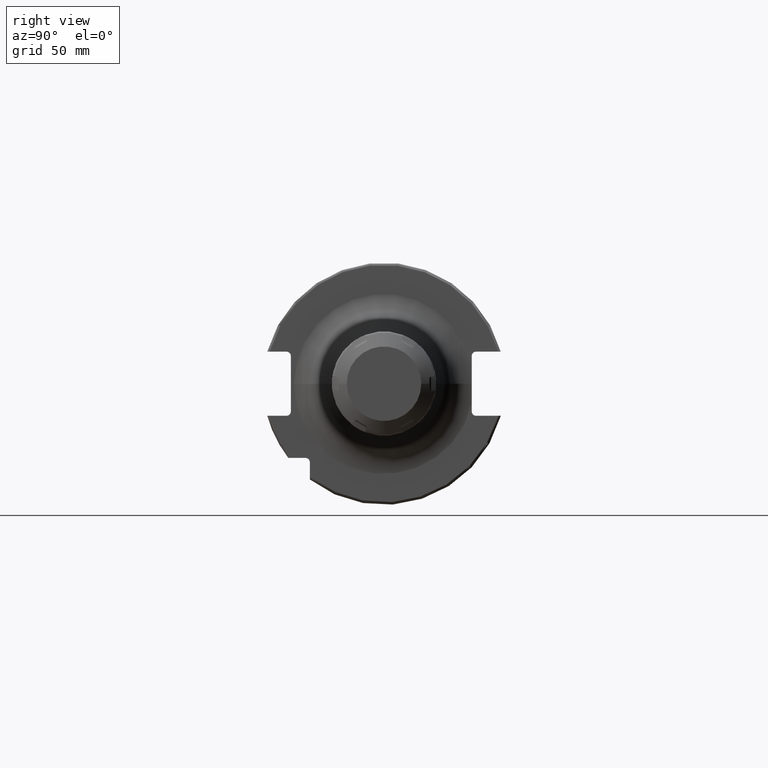
[diagram: clean part render]
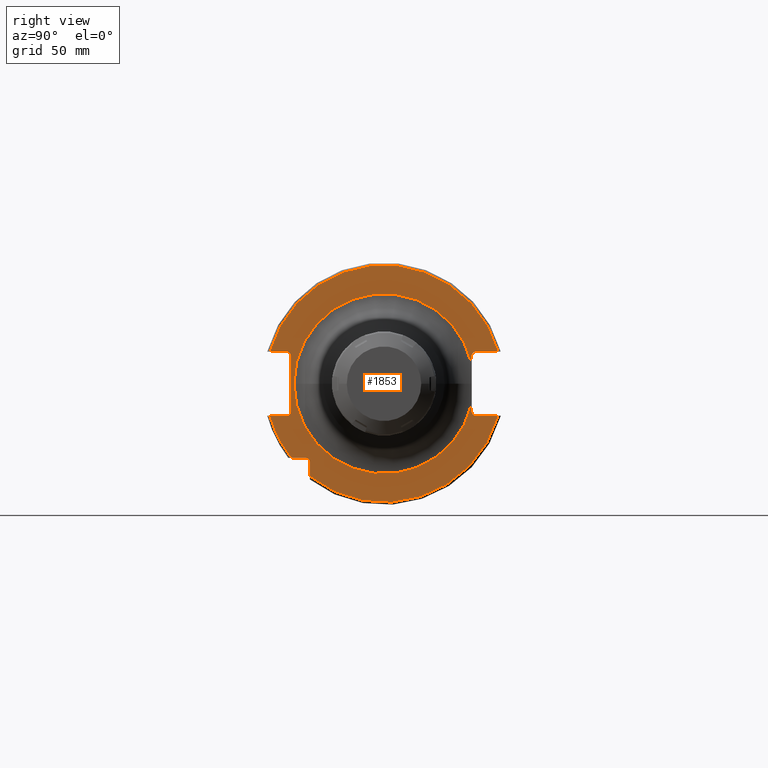
[diagram: same view with one face highlighted and labeled with its STEP entity id]
A machine part, right view. The second image highlights one B-rep face of the part: STEP entity #1853.
In plain terms, the highlighted planar face has unit normal (1, 0, 0).
Its self-contained STEP definition (entity closure, byte-faithful):
#130=CARTESIAN_POINT('',(1.905E1,0.E0,0.E0));
#131=DIRECTION('',(1.E0,0.E0,0.E0));
#132=DIRECTION('',(0.E0,-1.E0,0.E0));
#133=AXIS2_PLACEMENT_3D('',#130,#131,#132);
#135=DIRECTION('',(0.E0,1.418985083534E-5,-9.999999998993E-1));
#136=VECTOR('',#135,3.002176663091E0);
#137=CARTESIAN_POINT('',(1.905E1,3.529995739956E1,-8.147823337211E0));
#138=LINE('',#137,#136);
#139=DIRECTION('',(0.E0,-1.E0,0.E0));
#140=VECTOR('',#139,8.911493733886E0);
#141=CARTESIAN_POINT('',(1.905E1,4.596149373389E1,-1.29E1));
#142=LINE('',#141,#140);
#143=DIRECTION('',(0.E0,0.E0,1.E0));
#144=VECTOR('',#143,5.653810627237E0);
#145=CARTESIAN_POINT('',(1.905E1,-2.985E1,-3.725381062724E1));
#146=LINE('',#145,#144);
#147=DIRECTION('',(0.E0,-1.E0,0.E0));
#148=VECTOR('',#147,5.653810627237E0);
#149=CARTESIAN_POINT('',(1.905E1,-3.16E1,-2.985E1));
#150=LINE('',#149,#148);
#151=DIRECTION('',(0.E0,1.E0,0.E0));
#152=VECTOR('',#151,6.711493733886E0);
#153=CARTESIAN_POINT('',(1.905E1,-4.596149373389E1,-1.29E1));
#154=LINE('',#153,#152);
#155=DIRECTION('',(0.E0,0.E0,1.E0));
#156=VECTOR('',#155,2.23E1);
#157=CARTESIAN_POINT('',(1.905E1,-3.75E1,-1.115E1));
#158=LINE('',#157,#156);
#159=DIRECTION('',(0.E0,1.E0,0.E0));
#160=VECTOR('',#159,6.711493733886E0);
#161=CARTESIAN_POINT('',(1.905E1,-4.596149373389E1,1.29E1));
#162=LINE('',#161,#160);
#163=DIRECTION('',(0.E0,-1.E0,0.E0));
#164=VECTOR('',#163,8.911493733886E0);
#165=CARTESIAN_POINT('',(1.905E1,4.596149373389E1,1.29E1));
#166=LINE('',#165,#164);
#167=DIRECTION('',(0.E0,-1.455218191624E-5,-9.999999998941E-1));
#168=VECTOR('',#167,3.002067637427E0);
#169=CARTESIAN_POINT('',(1.905E1,3.53E1,1.115E1));
#170=LINE('',#169,#168);
#171=CARTESIAN_POINT('',(1.905E1,0.E0,0.E0));
#172=DIRECTION('',(1.E0,0.E0,0.E0));
#173=DIRECTION('',(0.E0,9.743845292243E-1,2.248883927828E-1));
#174=AXIS2_PLACEMENT_3D('',#171,#172,#173);
#370=CARTESIAN_POINT('',(1.905E1,3.705E1,-1.115E1));
#371=DIRECTION('',(-1.E0,0.E0,0.E0));
#372=DIRECTION('',(0.E0,0.E0,-1.E0));
#373=AXIS2_PLACEMENT_3D('',#370,#371,#372);
#439=CARTESIAN_POINT('',(1.905E1,-3.925E1,1.115E1));
#440=DIRECTION('',(-1.E0,0.E0,0.E0));
#441=DIRECTION('',(0.E0,0.E0,1.E0));
#442=AXIS2_PLACEMENT_3D('',#439,#440,#441);
#457=CARTESIAN_POINT('',(1.905E1,-3.925E1,-1.115E1));
#458=DIRECTION('',(-1.E0,0.E0,0.E0));
#459=DIRECTION('',(0.E0,1.E0,0.E0));
#460=AXIS2_PLACEMENT_3D('',#457,#458,#459);
#480=CARTESIAN_POINT('',(1.905E1,4.596149373389E1,-1.29E1));
#492=CARTESIAN_POINT('',(1.905E1,0.E0,0.E0));
#493=DIRECTION('',(-1.E0,0.E0,0.E0));
#494=DIRECTION('',(0.E0,9.627964123359E-1,-2.702278083268E-1));
#495=AXIS2_PLACEMENT_3D('',#492,#493,#494);
#497=CARTESIAN_POINT('',(1.905E1,-4.596149373389E1,-1.29E1));
#508=CARTESIAN_POINT('',(1.905E1,0.E0,0.E0));
#509=DIRECTION('',(-1.E0,0.E0,0.E0));
#510=DIRECTION('',(0.E0,-7.803888060170E-1,-6.252945797329E-1));
#511=AXIS2_PLACEMENT_3D('',#508,#509,#510);
#522=CARTESIAN_POINT('',(1.905E1,-3.725381062724E1,-2.985E1));
#643=CARTESIAN_POINT('',(1.905E1,-3.16E1,-3.16E1));
#644=DIRECTION('',(-1.E0,0.E0,0.E0));
#645=DIRECTION('',(0.E0,0.E0,1.E0));
#646=AXIS2_PLACEMENT_3D('',#643,#644,#645);
#728=CARTESIAN_POINT('',(1.905E1,3.705E1,1.115E1));
#729=DIRECTION('',(-1.E0,0.E0,0.E0));
#730=DIRECTION('',(0.E0,-1.E0,0.E0));
#731=AXIS2_PLACEMENT_3D('',#728,#729,#730);
#738=CARTESIAN_POINT('',(1.905E1,4.596149373389E1,1.29E1));
#749=CARTESIAN_POINT('',(1.905E1,0.E0,0.E0));
#750=DIRECTION('',(1.E0,0.E0,0.E0));
#751=DIRECTION('',(0.E0,9.627964123359E-1,2.702278083268E-1));
#752=AXIS2_PLACEMENT_3D('',#749,#750,#751);
#763=CARTESIAN_POINT('',(1.905E1,-4.596149373389E1,1.29E1));
#1497=VERTEX_POINT('',#738);
#1498=VERTEX_POINT('',#763);
#1501=VERTEX_POINT('',#480);
#1502=VERTEX_POINT('',#497);
#1521=CARTESIAN_POINT('',(1.905E1,-2.985E1,-3.725381062724E1));
#1522=VERTEX_POINT('',#1521);
#1529=CARTESIAN_POINT('',(1.905E1,-3.75E1,-1.115E1));
#1531=VERTEX_POINT('',#1529);
#1533=CARTESIAN_POINT('',(1.905E1,-3.925E1,-1.29E1));
#1535=VERTEX_POINT('',#1533);
#1537=CARTESIAN_POINT('',(1.905E1,-3.925E1,1.29E1));
#1539=VERTEX_POINT('',#1537);
#1541=CARTESIAN_POINT('',(1.905E1,-3.75E1,1.115E1));
#1543=VERTEX_POINT('',#1541);
#1545=CARTESIAN_POINT('',(1.905E1,3.53E1,1.115E1));
#1547=VERTEX_POINT('',#1545);
#1549=CARTESIAN_POINT('',(1.905E1,3.705E1,1.29E1));
#1551=VERTEX_POINT('',#1549);
#1553=CARTESIAN_POINT('',(1.905E1,3.705E1,-1.29E1));
#1555=VERTEX_POINT('',#1553);
#1557=CARTESIAN_POINT('',(1.905E1,3.53E1,-1.115E1));
#1559=VERTEX_POINT('',#1557);
#1561=CARTESIAN_POINT('',(1.905E1,-3.16E1,-2.985E1));
#1562=CARTESIAN_POINT('',(1.905E1,-2.985E1,-3.16E1));
#1563=VERTEX_POINT('',#1561);
#1564=VERTEX_POINT('',#1562);
#1601=CARTESIAN_POINT('',(1.905E1,-3.622816150469E1,6.040422268178E-14));
#1602=CARTESIAN_POINT('',(1.905E1,3.530022866998E1,-8.146995879274E0));
#1603=VERTEX_POINT('',#1601);
#1604=VERTEX_POINT('',#1602);
#1609=CARTESIAN_POINT('',(1.905E1,3.530016009241E1,8.147293014265E0));
#1610=VERTEX_POINT('',#1609);
#1634=VERTEX_POINT('',#522);
#1810=CARTESIAN_POINT('',(1.905E1,0.E0,0.E0));
#1811=DIRECTION('',(1.E0,0.E0,0.E0));
#1812=DIRECTION('',(0.E0,-1.E0,0.E0));
#1813=AXIS2_PLACEMENT_3D('',#1810,#1811,#1812);
#1814=PLANE('',#1813);
#1816=ORIENTED_EDGE('',*,*,#1815,.T.);
#1817=ORIENTED_EDGE('',*,*,#1788,.T.);
#1819=ORIENTED_EDGE('',*,*,#1818,.F.);
#1821=ORIENTED_EDGE('',*,*,#1820,.F.);
#1823=ORIENTED_EDGE('',*,*,#1822,.T.);
#1825=ORIENTED_EDGE('',*,*,#1824,.T.);
#1827=ORIENTED_EDGE('',*,*,#1826,.F.);
#1829=ORIENTED_EDGE('',*,*,#1828,.T.);
#1831=ORIENTED_EDGE('',*,*,#1830,.T.);
#1833=ORIENTED_EDGE('',*,*,#1832,.T.);
#1835=ORIENTED_EDGE('',*,*,#1834,.F.);
#1837=ORIENTED_EDGE('',*,*,#1836,.T.);
#1839=ORIENTED_EDGE('',*,*,#1838,.F.);
#1841=ORIENTED_EDGE('',*,*,#1840,.F.);
#1843=ORIENTED_EDGE('',*,*,#1842,.F.);
#1845=ORIENTED_EDGE('',*,*,#1844,.T.);
#1847=ORIENTED_EDGE('',*,*,#1846,.F.);
#1848=ORIENTED_EDGE('',*,*,#1794,.T.);
#1850=ORIENTED_EDGE('',*,*,#1849,.T.);
#1851=EDGE_LOOP('',(#1816,#1817,#1819,#1821,#1823,#1825,#1827,#1829,#1831,#1833,
#1835,#1837,#1839,#1841,#1843,#1845,#1847,#1848,#1850));
#1852=FACE_OUTER_BOUND('',#1851,.F.);
#1853=ADVANCED_FACE('',(#1852),#1814,.T.);
#134=CIRCLE('',#133,3.622816150469E1);
#175=CIRCLE('',#174,3.622816150469E1);
#374=CIRCLE('',#373,1.75E0);
#443=CIRCLE('',#442,1.75E0);
#461=CIRCLE('',#460,1.75E0);
#496=CIRCLE('',#495,4.77375E1);
#512=CIRCLE('',#511,4.77375E1);
#647=CIRCLE('',#646,1.75E0);
#732=CIRCLE('',#731,1.75E0);
#753=CIRCLE('',#752,4.77375E1);
#1788=EDGE_CURVE('',#1604,#1559,#138,.T.);
#1794=EDGE_CURVE('',#1547,#1610,#170,.T.);
#1815=EDGE_CURVE('',#1603,#1604,#134,.T.);
#1818=EDGE_CURVE('',#1555,#1559,#374,.T.);
#1820=EDGE_CURVE('',#1501,#1555,#142,.T.);
#1822=EDGE_CURVE('',#1501,#1522,#496,.T.);
#1824=EDGE_CURVE('',#1522,#1564,#146,.T.);
#1826=EDGE_CURVE('',#1563,#1564,#647,.T.);
#1828=EDGE_CURVE('',#1563,#1634,#150,.T.);
#1830=EDGE_CURVE('',#1634,#1502,#512,.T.);
#1832=EDGE_CURVE('',#1502,#1535,#154,.T.);
#1834=EDGE_CURVE('',#1531,#1535,#461,.T.);
#1836=EDGE_CURVE('',#1531,#1543,#158,.T.);
#1838=EDGE_CURVE('',#1539,#1543,#443,.T.);
#1840=EDGE_CURVE('',#1498,#1539,#162,.T.);
#1842=EDGE_CURVE('',#1497,#1498,#753,.T.);
#1844=EDGE_CURVE('',#1497,#1551,#166,.T.);
#1846=EDGE_CURVE('',#1547,#1551,#732,.T.);
#1849=EDGE_CURVE('',#1610,#1603,#175,.T.);